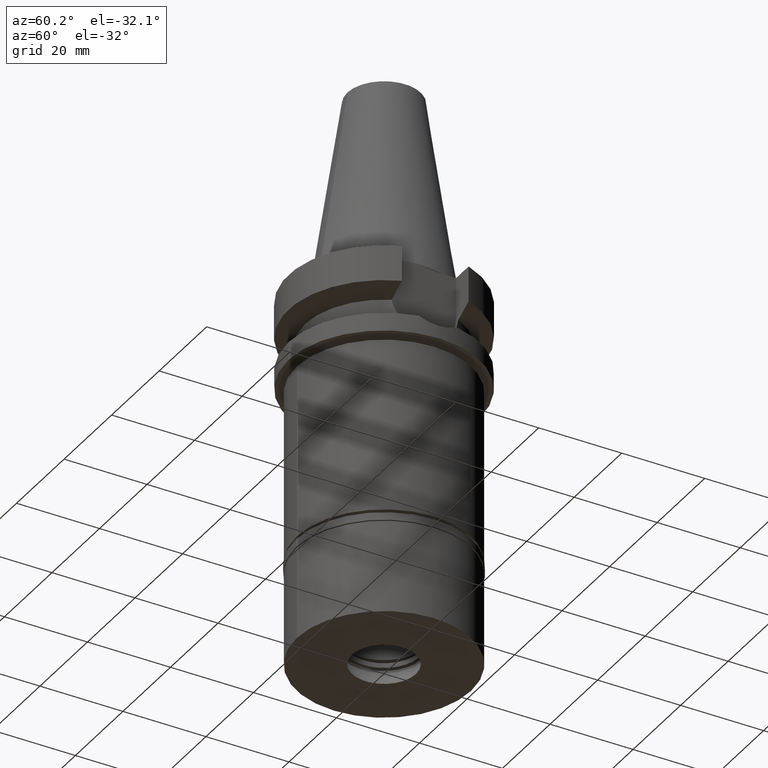
[diagram: clean part render]
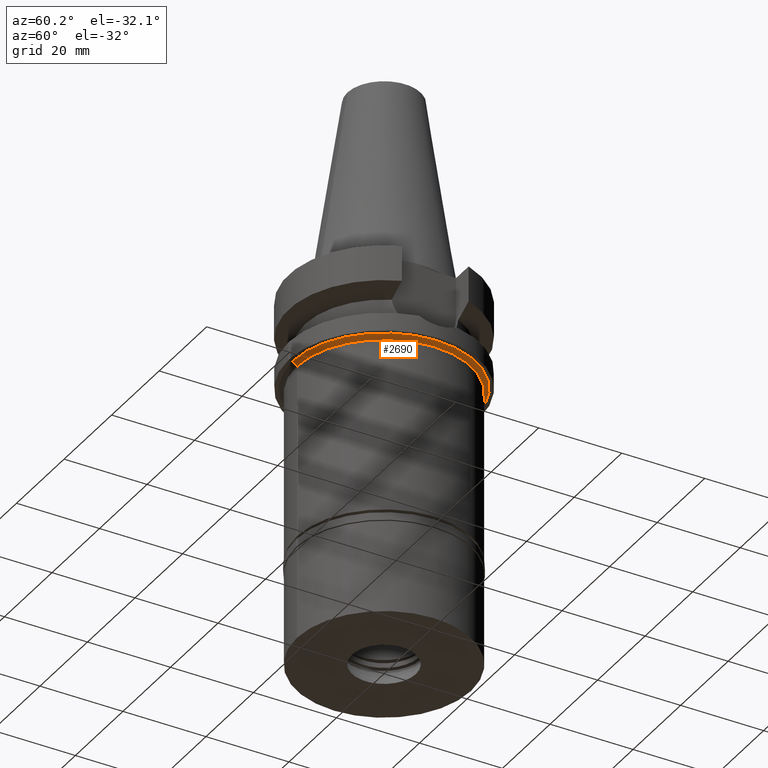
[diagram: same view with one face highlighted and labeled with its STEP entity id]
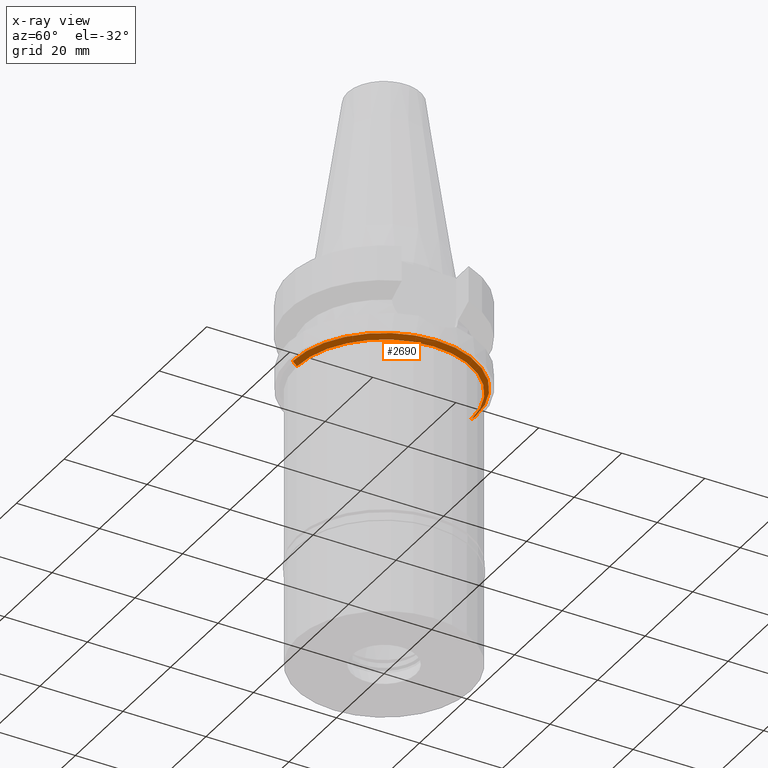
[diagram: x-ray of the same camera — body ghosted, the highlighted face saturated]
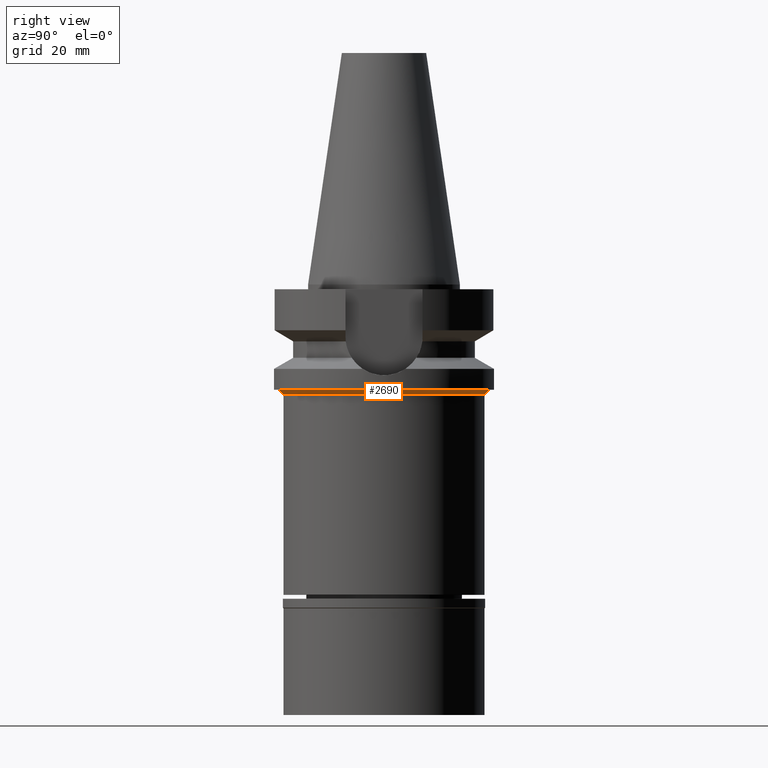
[diagram: same view with one face highlighted and labeled with its STEP entity id]
A machine part, auxiliary view. The second image highlights one B-rep face of the part: STEP entity #2690.
The next image is the same camera in x-ray: the body ghosted, the highlighted face saturated — about 1% of this face is hidden behind the body in this view.
A second angle (right view) of the same face is appended — the face is thin or edge-on in the first view.
In plain terms, the highlighted conical surface has half-angle 45 deg.
Its self-contained STEP definition (entity closure, byte-faithful):
#176 = DIRECTION ( 'NONE',  ( 0.0000000000000000000, 1.000000000000000000, 0.0000000000000000000 ) ) ;
#245 = EDGE_LOOP ( 'NONE', ( #2804, #1893, #920, #1420 ) ) ;
#274 = CARTESIAN_POINT ( 'NONE',  ( 0.0000000000000000000, -22.00000000000000000, -22.00000000000000000 ) ) ;
#340 = CONICAL_SURFACE ( 'NONE', #487, 21.50000000000000000, 0.7853981633972997312 ) ;
#437 = AXIS2_PLACEMENT_3D ( 'NONE', #2050, #600, #176 ) ;
#487 = AXIS2_PLACEMENT_3D ( 'NONE', #2685, #1275, #1294 ) ;
#563 = CARTESIAN_POINT ( 'NONE',  ( 0.0000000000000000000, 0.0000000000000000000, -22.00000000000000000 ) ) ;
#597 = EDGE_CURVE ( 'NONE', #1478, #1274, #676, .T. ) ;
#600 = DIRECTION ( 'NONE',  ( 0.0000000000000000000, 0.0000000000000000000, -1.000000000000000000 ) ) ;
#633 = CIRCLE ( 'NONE', #1851, 22.00000000000000000 ) ;
#676 = LINE ( 'NONE', #1949, #2971 ) ;
#920 = ORIENTED_EDGE ( 'NONE', *, *, #1815, .F. ) ;
#1001 = DIRECTION ( 'NONE',  ( 0.0000000000000000000, 1.000000000000000000, 0.0000000000000000000 ) ) ;
#1003 = LINE ( 'NONE', #1983, #1691 ) ;
#1037 = DIRECTION ( 'NONE',  ( 0.0000000000000000000, 0.0000000000000000000, -1.000000000000000000 ) ) ;
#1081 = EDGE_CURVE ( 'NONE', #2443, #2792, #1003, .T. ) ;
#1190 = CARTESIAN_POINT ( 'NONE',  ( 0.0000000000000000000, 22.00000000000000000, -22.00000000000000000 ) ) ;
#1274 = VERTEX_POINT ( 'NONE', #1339 ) ;
#1275 = DIRECTION ( 'NONE',  ( 0.0000000000000000000, 0.0000000000000000000, 1.000000000000000000 ) ) ;
#1288 = CIRCLE ( 'NONE', #437, 21.00000000000000000 ) ;
#1294 = DIRECTION ( 'NONE',  ( 0.0000000000000000000, 1.000000000000000000, 0.0000000000000000000 ) ) ;
#1339 = CARTESIAN_POINT ( 'NONE',  ( 0.0000000000000000000, -21.00000000000000000, -23.00000000000000000 ) ) ;
#1420 = ORIENTED_EDGE ( 'NONE', *, *, #1081, .F. ) ;
#1478 = VERTEX_POINT ( 'NONE', #274 ) ;
#1686 = EDGE_CURVE ( 'NONE', #2443, #1478, #633, .T. ) ;
#1691 = VECTOR ( 'NONE', #2222, 1000.000000000000114 ) ;
#1815 = EDGE_CURVE ( 'NONE', #2792, #1274, #1288, .T. ) ;
#1851 = AXIS2_PLACEMENT_3D ( 'NONE', #563, #1037, #1001 ) ;
#1893 = ORIENTED_EDGE ( 'NONE', *, *, #597, .T. ) ;
#1949 = CARTESIAN_POINT ( 'NONE',  ( 0.0000000000000000000, -22.00000000000000000, -22.00000000000000000 ) ) ;
#1983 = CARTESIAN_POINT ( 'NONE',  ( 0.0000000000000000000, 22.00000000000000000, -22.00000000000000000 ) ) ;
#2050 = CARTESIAN_POINT ( 'NONE',  ( 0.0000000000000000000, 0.0000000000000000000, -23.00000000000000000 ) ) ;
#2187 = CARTESIAN_POINT ( 'NONE',  ( 0.0000000000000000000, 21.00000000000000000, -23.00000000000000000 ) ) ;
#2222 = DIRECTION ( 'NONE',  ( 0.0000000000000000000, -0.7071067811865474617, -0.7071067811865474617 ) ) ;
#2264 = FACE_OUTER_BOUND ( 'NONE', #245, .T. ) ;
#2386 = DIRECTION ( 'NONE',  ( 0.0000000000000000000, 0.7071067811865474617, -0.7071067811865474617 ) ) ;
#2443 = VERTEX_POINT ( 'NONE', #1190 ) ;
#2685 = CARTESIAN_POINT ( 'NONE',  ( 0.0000000000000000000, 0.0000000000000000000, -22.50000000000000000 ) ) ;
#2690 = ADVANCED_FACE ( 'NONE', ( #2264 ), #340, .T. ) ;
#2792 = VERTEX_POINT ( 'NONE', #2187 ) ;
#2804 = ORIENTED_EDGE ( 'NONE', *, *, #1686, .T. ) ;
#2971 = VECTOR ( 'NONE', #2386, 1000.000000000000114 ) ;